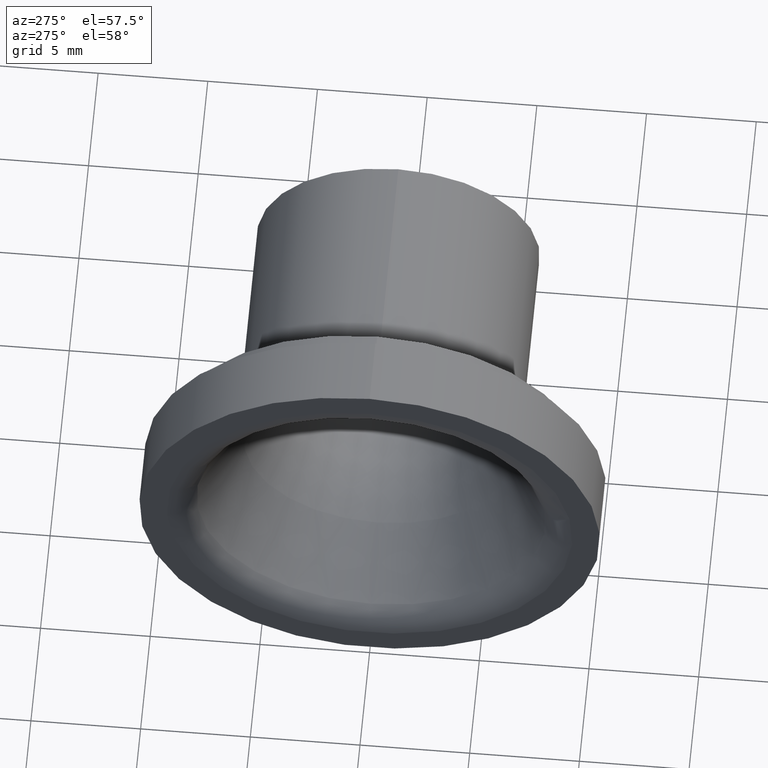
[diagram: clean part render]
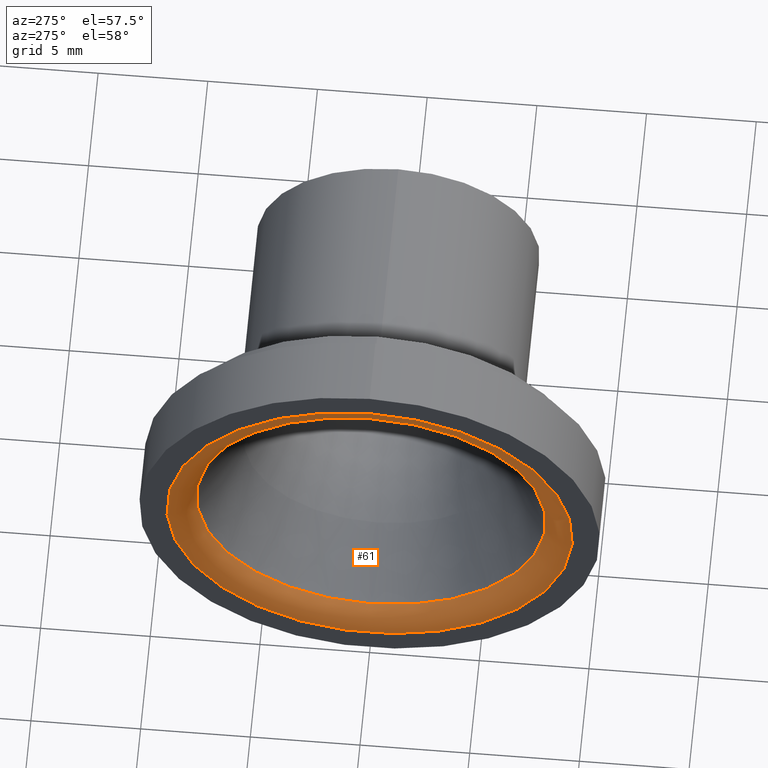
[diagram: same view with one face highlighted and labeled with its STEP entity id]
A machine part, auxiliary view. The second image highlights one B-rep face of the part: STEP entity #61.
In plain terms, the highlighted toroidal blend (fillet) surface has major radius 9.25 mm and minor (blend) radius 1.5 mm.
Its self-contained STEP definition (entity closure, byte-faithful):
#61 = ADVANCED_FACE( '', ( #128, #129 ), #130, .T. );
#128 = FACE_OUTER_BOUND( '', #187, .T. );
#129 = FACE_OUTER_BOUND( '', #188, .T. );
#130 = TOROIDAL_SURFACE( '', #189, 9.25000000000000, 1.50000000000000 );
#187 = EDGE_LOOP( '', ( #264 ) );
#188 = EDGE_LOOP( '', ( #265 ) );
#189 = AXIS2_PLACEMENT_3D( '', #266, #267, #268 );
#264 = ORIENTED_EDGE( '', *, *, #293, .T. );
#265 = ORIENTED_EDGE( '', *, *, #276, .F. );
#266 = CARTESIAN_POINT( '', ( 1.50000000000000, 0.000000000000000, 0.000000000000000 ) );
#267 = DIRECTION( '', ( -1.00000000000000, 0.000000000000000, 0.000000000000000 ) );
#268 = DIRECTION( '', ( 0.000000000000000, 0.000000000000000, 1.00000000000000 ) );
#276 = EDGE_CURVE( '', #306, #306, #307, .T. );
#293 = EDGE_CURVE( '', #331, #331, #332, .T. );
#306 = VERTEX_POINT( '', #345 );
#307 = CIRCLE( '', #346, 7.96022524133000 );
#331 = VERTEX_POINT( '', #370 );
#332 = CIRCLE( '', #371, 9.25000000000000 );
#345 = CARTESIAN_POINT( '', ( 0.734179478012159, 0.000000000000000, 7.96022524133000 ) );
#346 = AXIS2_PLACEMENT_3D( '', #385, #386, #387 );
#370 = CARTESIAN_POINT( '', ( 0.000000000000000, 0.000000000000000, 9.25000000000000 ) );
#371 = AXIS2_PLACEMENT_3D( '', #409, #410, #411 );
#385 = CARTESIAN_POINT( '', ( 0.734179478012159, 0.000000000000000, 0.000000000000000 ) );
#386 = DIRECTION( '', ( -1.00000000000000, 0.000000000000000, 0.000000000000000 ) );
#387 = DIRECTION( '', ( 0.000000000000000, 0.000000000000000, 1.00000000000000 ) );
#409 = CARTESIAN_POINT( '', ( 0.000000000000000, 0.000000000000000, 0.000000000000000 ) );
#410 = DIRECTION( '', ( -1.00000000000000, 0.000000000000000, 0.000000000000000 ) );
#411 = DIRECTION( '', ( 0.000000000000000, 0.000000000000000, 1.00000000000000 ) );